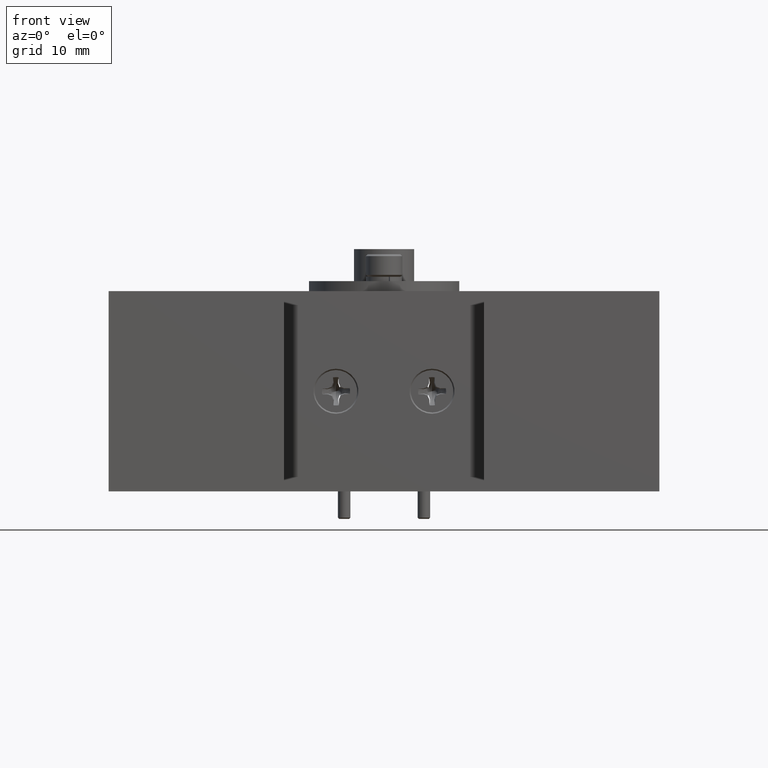
[diagram: clean part render]
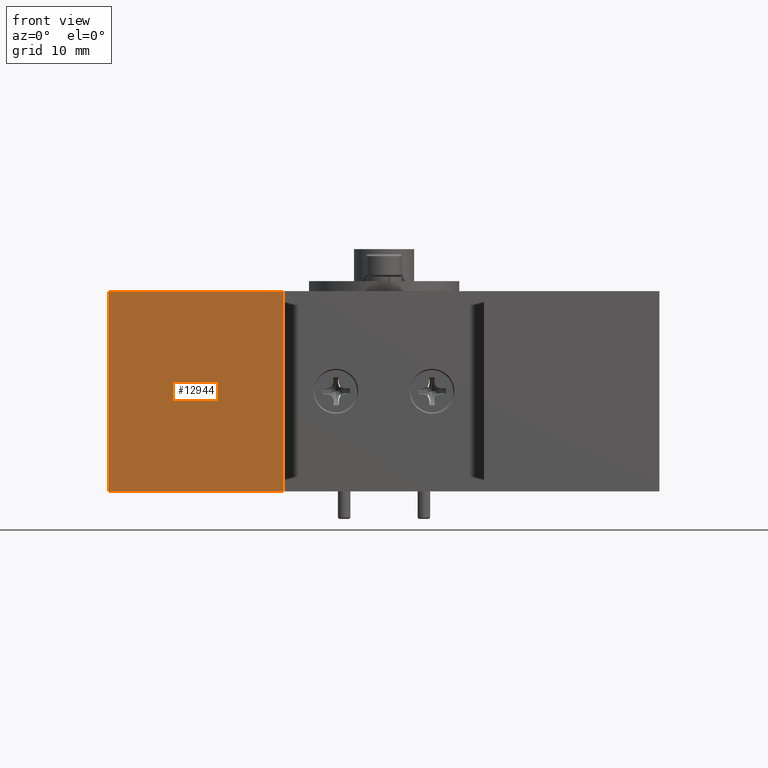
[diagram: same view with one face highlighted and labeled with its STEP entity id]
A machine part, front view. The second image highlights one B-rep face of the part: STEP entity #12944.
In plain terms, the highlighted planar face has unit normal (0, 1, 0).
Its self-contained STEP definition (entity closure, byte-faithful):
#1808 = CARTESIAN_POINT ( 'NONE',  ( -34.92500000000000400, -31.49600000000000200, -12.69999999999999600 ) ) ;
#1864 = ORIENTED_EDGE ( 'NONE', *, *, #8602, .F. ) ;
#2047 = CARTESIAN_POINT ( 'NONE',  ( -34.92500000000000400, -31.49600000000000200, 12.70000000000000300 ) ) ;
#2103 = CARTESIAN_POINT ( 'NONE',  ( -34.92500000000000400, -31.49600000000000200, 12.70000000000000300 ) ) ;
#2244 = ORIENTED_EDGE ( 'NONE', *, *, #17407, .T. ) ;
#2386 = CARTESIAN_POINT ( 'NONE',  ( -12.69999999999999200, -31.49600000000000200, 12.70000000000000300 ) ) ;
#2638 = DIRECTION ( 'NONE',  ( 1.000000000000000000, 0.0000000000000000000, 0.0000000000000000000 ) ) ;
#2697 = EDGE_CURVE ( 'NONE', #7914, #10887, #9281, .T. ) ;
#3537 = VECTOR ( 'NONE', #14198, 1000.000000000000000 ) ;
#3888 = CARTESIAN_POINT ( 'NONE',  ( -12.69999999999999200, -31.49600000000000200, 12.70000000000000300 ) ) ;
#4419 = ORIENTED_EDGE ( 'NONE', *, *, #2697, .T. ) ;
#6010 = VERTEX_POINT ( 'NONE', #15164 ) ;
#6084 = ORIENTED_EDGE ( 'NONE', *, *, #11265, .F. ) ;
#6304 = CARTESIAN_POINT ( 'NONE',  ( -34.92500000000000400, -31.49600000000000200, -12.69999999999999600 ) ) ;
#6792 = CARTESIAN_POINT ( 'NONE',  ( -34.92500000000000400, -31.49600000000000200, 12.70000000000000300 ) ) ;
#7275 = CARTESIAN_POINT ( 'NONE',  ( -12.69999999999999200, -31.49600000000000200, -12.69999999999999600 ) ) ;
#7914 = VERTEX_POINT ( 'NONE', #1808 ) ;
#8227 = AXIS2_PLACEMENT_3D ( 'NONE', #2047, #16786, #16900 ) ;
#8590 = LINE ( 'NONE', #3888, #13421 ) ;
#8602 = EDGE_CURVE ( 'NONE', #15266, #10887, #8590, .T. ) ;
#9281 = LINE ( 'NONE', #6304, #11595 ) ;
#9448 = DIRECTION ( 'NONE',  ( 1.000000000000000000, 0.0000000000000000000, 0.0000000000000000000 ) ) ;
#9580 = LINE ( 'NONE', #6792, #15440 ) ;
#10634 = DIRECTION ( 'NONE',  ( -0.0000000000000000000, -0.0000000000000000000, -1.000000000000000000 ) ) ;
#10887 = VERTEX_POINT ( 'NONE', #7275 ) ;
#11265 = EDGE_CURVE ( 'NONE', #6010, #15266, #9580, .T. ) ;
#11595 = VECTOR ( 'NONE', #2638, 1000.000000000000000 ) ;
#12944 = ADVANCED_FACE ( 'NONE', ( #16852 ), #15331, .F. ) ;
#13060 = EDGE_LOOP ( 'NONE', ( #4419, #1864, #6084, #2244 ) ) ;
#13421 = VECTOR ( 'NONE', #10634, 1000.000000000000000 ) ;
#14198 = DIRECTION ( 'NONE',  ( -0.0000000000000000000, -0.0000000000000000000, -1.000000000000000000 ) ) ;
#15164 = CARTESIAN_POINT ( 'NONE',  ( -34.92500000000000400, -31.49600000000000200, 12.70000000000000300 ) ) ;
#15266 = VERTEX_POINT ( 'NONE', #2386 ) ;
#15331 = PLANE ( 'NONE',  #8227 ) ;
#15440 = VECTOR ( 'NONE', #9448, 1000.000000000000000 ) ;
#16786 = DIRECTION ( 'NONE',  ( 0.0000000000000000000, 1.000000000000000000, 0.0000000000000000000 ) ) ;
#16852 = FACE_OUTER_BOUND ( 'NONE', #13060, .T. ) ;
#16900 = DIRECTION ( 'NONE',  ( 0.0000000000000000000, -0.0000000000000000000, 1.000000000000000000 ) ) ;
#17176 = LINE ( 'NONE', #2103, #3537 ) ;
#17407 = EDGE_CURVE ( 'NONE', #6010, #7914, #17176, .T. ) ;